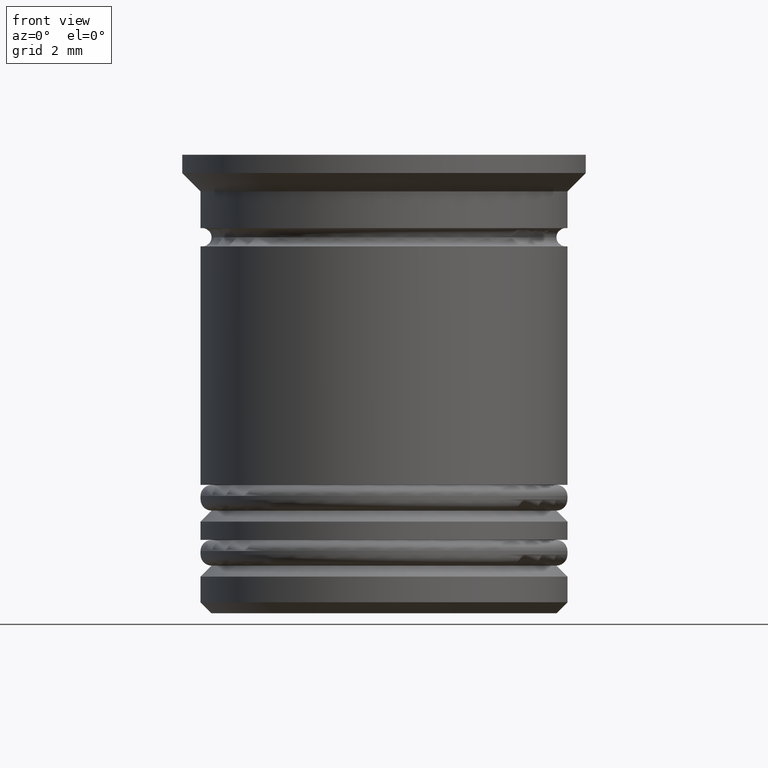
[diagram: clean part render]
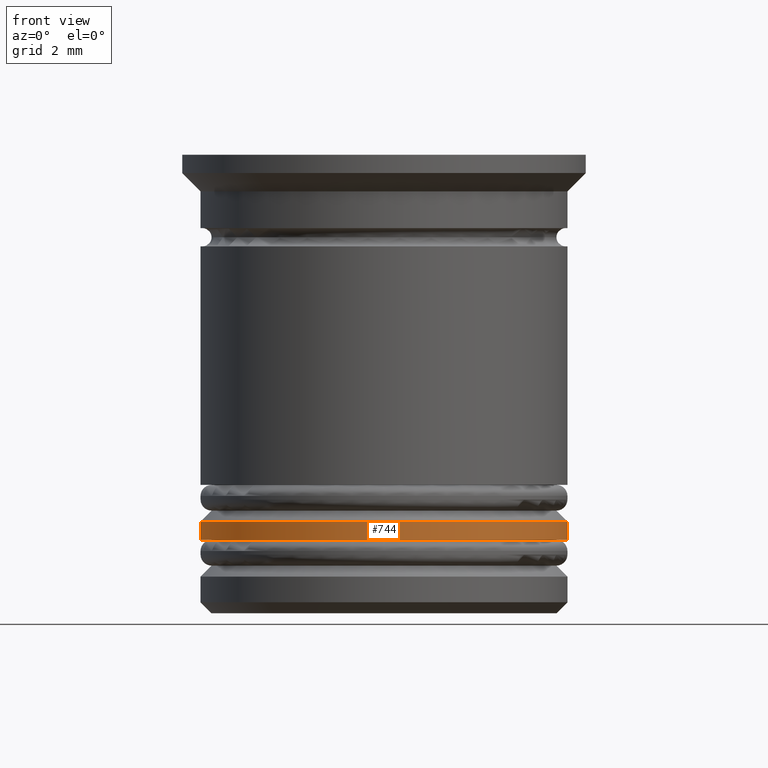
[diagram: same view with one face highlighted and labeled with its STEP entity id]
A machine part, front view. The second image highlights one B-rep face of the part: STEP entity #744.
In plain terms, the highlighted cylindrical surface (partial cylindrical patch) has radius 5 mm, axis along (-0, -0, 1).
Its self-contained STEP definition (entity closure, byte-faithful):
#23 = EDGE_CURVE ( 'NONE', #830, #754, #1667, .T. ) ;
#37 = DIRECTION ( 'NONE',  ( 0.000000000000000000, 0.000000000000000000, -1.000000000000000000 ) ) ;
#207 = DIRECTION ( 'NONE',  ( -0.000000000000000000, -0.000000000000000000, 1.000000000000000000 ) ) ;
#223 = EDGE_CURVE ( 'NONE', #754, #560, #1978, .T. ) ;
#248 = AXIS2_PLACEMENT_3D ( 'NONE', #1633, #826, #1958 ) ;
#404 = CARTESIAN_POINT ( 'NONE',  ( 5.000000000000000888, 0.000000000000000000, 0.000000000000000000 ) ) ;
#443 = EDGE_CURVE ( 'NONE', #560, #1436, #1336, .T. ) ;
#462 = CARTESIAN_POINT ( 'NONE',  ( 5.000000000000001776, 0.000000000000000000, -10.50000000000000178 ) ) ;
#560 = VERTEX_POINT ( 'NONE', #848 ) ;
#621 = VECTOR ( 'NONE', #207, 1000.000000000000000 ) ;
#744 = ADVANCED_FACE ( 'NONE', ( #1126 ), #2077, .T. ) ;
#754 = VERTEX_POINT ( 'NONE', #462 ) ;
#767 = EDGE_LOOP ( 'NONE', ( #1104, #1119, #1604, #1710 ) ) ;
#813 = DIRECTION ( 'NONE',  ( -1.000000000000000000, 0.000000000000000000, 0.000000000000000000 ) ) ;
#825 = EDGE_CURVE ( 'NONE', #830, #1436, #1647, .T. ) ;
#826 = DIRECTION ( 'NONE',  ( -0.000000000000000000, -0.000000000000000000, 1.000000000000000000 ) ) ;
#828 = CARTESIAN_POINT ( 'NONE',  ( -5.000000000000000888, 6.123233995736767268E-16, 0.000000000000000000 ) ) ;
#830 = VERTEX_POINT ( 'NONE', #1178 ) ;
#842 = DIRECTION ( 'NONE',  ( -0.000000000000000000, -0.000000000000000000, 1.000000000000000000 ) ) ;
#848 = CARTESIAN_POINT ( 'NONE',  ( 5.000000000000000888, 0.000000000000000000, -10.00000000000000533 ) ) ;
#936 = DIRECTION ( 'NONE',  ( 1.000000000000000000, 0.000000000000000000, 0.000000000000000000 ) ) ;
#945 = CARTESIAN_POINT ( 'NONE',  ( -5.000000000000000888, 6.123233995736767268E-16, -10.00000000000000533 ) ) ;
#983 = CARTESIAN_POINT ( 'NONE',  ( 0.000000000000000000, 0.000000000000000000, -10.00000000000000533 ) ) ;
#1104 = ORIENTED_EDGE ( 'NONE', *, *, #825, .F. ) ;
#1119 = ORIENTED_EDGE ( 'NONE', *, *, #23, .T. ) ;
#1126 = FACE_OUTER_BOUND ( 'NONE', #767, .T. ) ;
#1178 = CARTESIAN_POINT ( 'NONE',  ( -5.000000000000001776, 6.123233995736768255E-16, -10.50000000000000178 ) ) ;
#1277 = VECTOR ( 'NONE', #842, 1000.000000000000000 ) ;
#1336 = CIRCLE ( 'NONE', #1993, 5.000000000000000888 ) ;
#1436 = VERTEX_POINT ( 'NONE', #945 ) ;
#1437 = CARTESIAN_POINT ( 'NONE',  ( 0.000000000000000000, 0.000000000000000000, 0.000000000000000000 ) ) ;
#1604 = ORIENTED_EDGE ( 'NONE', *, *, #223, .T. ) ;
#1633 = CARTESIAN_POINT ( 'NONE',  ( 0.000000000000000000, 0.000000000000000000, -10.50000000000000178 ) ) ;
#1647 = LINE ( 'NONE', #828, #1277 ) ;
#1667 = CIRCLE ( 'NONE', #248, 5.000000000000001776 ) ;
#1710 = ORIENTED_EDGE ( 'NONE', *, *, #443, .T. ) ;
#1907 = DIRECTION ( 'NONE',  ( -0.000000000000000000, -0.000000000000000000, 1.000000000000000000 ) ) ;
#1958 = DIRECTION ( 'NONE',  ( 1.000000000000000000, 0.000000000000000000, 0.000000000000000000 ) ) ;
#1978 = LINE ( 'NONE', #404, #621 ) ;
#1993 = AXIS2_PLACEMENT_3D ( 'NONE', #983, #37, #813 ) ;
#2072 = AXIS2_PLACEMENT_3D ( 'NONE', #1437, #1907, #936 ) ;
#2077 = CYLINDRICAL_SURFACE ( 'NONE', #2072, 5.000000000000000888 ) ;